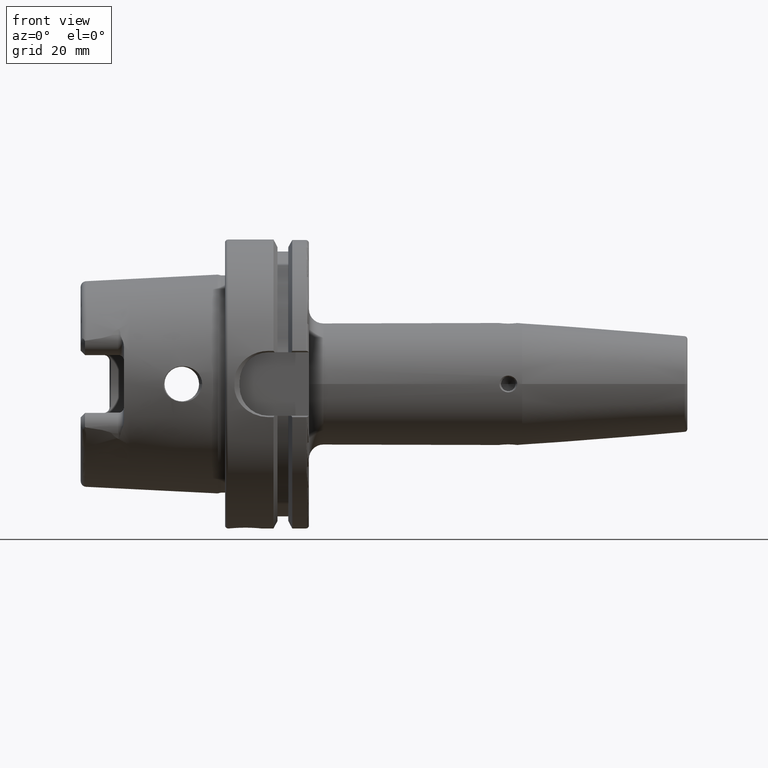
[diagram: clean part render]
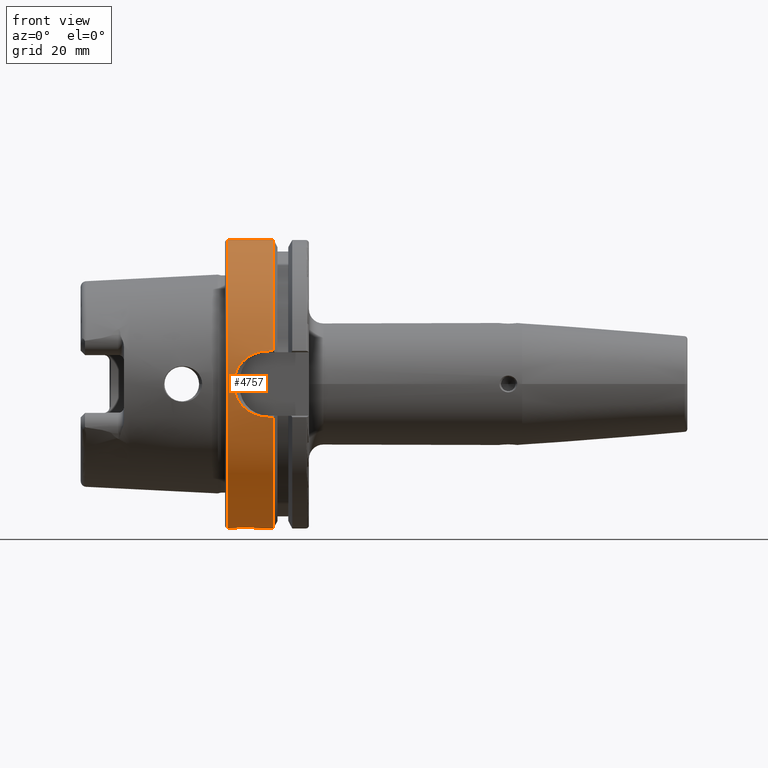
[diagram: same view with one face highlighted and labeled with its STEP entity id]
A machine part, front view. The second image highlights one B-rep face of the part: STEP entity #4757.
In plain terms, the highlighted cylindrical surface (partial cylindrical patch) has radius 50 mm, axis along (1, 0, 0).
Its self-contained STEP definition (entity closure, byte-faithful):
#1285=CARTESIAN_POINT('',(1.25E1,0.E0,-5.E1));
#1302=CARTESIAN_POINT('',(1.5E0,0.E0,-5.E1));
#1395=CARTESIAN_POINT('',(1.E0,0.E0,0.E0));
#1396=DIRECTION('',(-1.E0,0.E0,0.E0));
#1397=DIRECTION('',(0.E0,0.E0,-1.E0));
#1398=AXIS2_PLACEMENT_3D('',#1395,#1396,#1397);
#1400=DIRECTION('',(-1.E0,-1.567059371289E-13,0.E0));
#1401=VECTOR('',#1400,1.575240473581E1);
#1402=CARTESIAN_POINT('',(1.675240473581E1,-1.020538999289E-14,5.E1));
#1403=LINE('',#1402,#1401);
#1404=CARTESIAN_POINT('',(1.675240473581E1,0.E0,0.E0));
#1405=DIRECTION('',(1.E0,0.E0,0.E0));
#1406=DIRECTION('',(0.E0,0.E0,1.E0));
#1407=AXIS2_PLACEMENT_3D('',#1404,#1405,#1406);
#1409=DIRECTION('',(1.E0,0.E0,0.E0));
#1410=VECTOR('',#1409,1.752404735808E0);
#1411=CARTESIAN_POINT('',(1.5E1,-4.866725793949E1,1.146725793949E1));
#1412=LINE('',#1411,#1410);
#1413=CARTESIAN_POINT('',(3.242449234641E0,-5.E1,-3.294650840407E-12));
#1414=CARTESIAN_POINT('',(3.195698626160E0,-5.E1,5.496726525140E-1));
#1415=CARTESIAN_POINT('',(3.198108672875E0,-4.998199676773E1,1.634145973803E0));
#1416=CARTESIAN_POINT('',(3.473212193996E0,-4.990375275698E1,3.229913317570E0));
#1417=CARTESIAN_POINT('',(4.001146744661E0,-4.978182243176E1,4.741692759375E0));
#1418=CARTESIAN_POINT('',(4.750889084959E0,-4.962813696275E1,6.135179899987E0));
#1419=CARTESIAN_POINT('',(5.685923258905E0,-4.945656431633E1,7.383388400570E0));
#1420=CARTESIAN_POINT('',(6.772808018734E0,-4.928030837920E1,8.473267682348E0));
#1421=CARTESIAN_POINT('',(7.971387096938E0,-4.911246630353E1,9.391752746832E0));
#1422=CARTESIAN_POINT('',(9.263198137577E0,-4.896154109661E1,1.014506900311E1));
#1423=CARTESIAN_POINT('',(1.062765257134E1,-4.883542774445E1,1.073259403525E1));
#1424=CARTESIAN_POINT('',(1.205033686891E1,-4.874013967174E1,1.115515935174E1));
#1425=CARTESIAN_POINT('',(1.351434747589E1,-4.868076398407E1,1.141016022122E1));
#1426=CARTESIAN_POINT('',(1.450196207708E1,-4.866725793949E1,1.146725793949E1));
#1427=CARTESIAN_POINT('',(1.5E1,-4.866725793949E1,1.146725793949E1));
#1429=CARTESIAN_POINT('',(1.5E1,-4.866725793949E1,-1.146725793949E1));
#1430=CARTESIAN_POINT('',(1.426284537492E1,-4.866725793949E1,
-1.146725793949E1));
#1431=CARTESIAN_POINT('',(1.280284266871E1,-4.869577412770E1,
-1.134757214403E1));
#1432=CARTESIAN_POINT('',(1.053726696753E1,-4.883429446847E1,
-1.074366768164E1));
#1433=CARTESIAN_POINT('',(8.551336985445E0,-4.903608754895E1,
-9.791235095736E0));
#1434=CARTESIAN_POINT('',(6.939682711705E0,-4.925346794232E1,
-8.635938317251E0));
#1435=CARTESIAN_POINT('',(5.743166457549E0,-4.944661638367E1,
-7.450856693894E0));
#1436=CARTESIAN_POINT('',(4.803554973365E0,-4.961795195372E1,
-6.215970666327E0));
#1437=CARTESIAN_POINT('',(4.030855658686E0,-4.977523977613E1,
-4.813180449423E0));
#1438=CARTESIAN_POINT('',(3.477728115863E0,-4.990239629529E1,
-3.259600114121E0));
#1439=CARTESIAN_POINT('',(3.195372415950E0,-4.998280024600E1,
-1.616982989273E0));
#1440=CARTESIAN_POINT('',(3.196513801491E0,-5.E1,-5.400881871914E-1));
#1441=CARTESIAN_POINT('',(3.242449234641E0,-5.E1,-3.294650840407E-12));
#1443=DIRECTION('',(1.E0,0.E0,0.E0));
#1444=VECTOR('',#1443,1.752404735808E0);
#1445=CARTESIAN_POINT('',(1.5E1,-4.866725793949E1,-1.146725793949E1));
#1446=LINE('',#1445,#1444);
#1447=CARTESIAN_POINT('',(1.675240473581E1,0.E0,0.E0));
#1448=DIRECTION('',(1.E0,0.E0,0.E0));
#1449=DIRECTION('',(0.E0,-9.733451587899E-1,-2.293451587899E-1));
#1450=AXIS2_PLACEMENT_3D('',#1447,#1448,#1449);
#1452=DIRECTION('',(-1.E0,0.E0,0.E0));
#1453=VECTOR('',#1452,4.252404735808E0);
#1454=CARTESIAN_POINT('',(1.675240473581E1,0.E0,-5.E1));
#1455=LINE('',#1454,#1453);
#1456=CARTESIAN_POINT('',(1.5E0,0.E0,-5.E1));
#1457=CARTESIAN_POINT('',(1.5E0,-3.839369724111E-1,-5.E1));
#1458=CARTESIAN_POINT('',(1.587262621390E0,-1.127059758559E0,
-4.999125825446E1));
#1459=CARTESIAN_POINT('',(1.959642641189E0,-2.185155425361E0,
-4.995564115930E1));
#1460=CARTESIAN_POINT('',(2.549390042110E0,-3.132091593471E0,
-4.990438793404E1));
#1461=CARTESIAN_POINT('',(3.326233948467E0,-3.938620596326E0,
-4.984640830668E1));
#1462=CARTESIAN_POINT('',(4.270619486322E0,-4.579597405866E0,
-4.979080203015E1));
#1463=CARTESIAN_POINT('',(5.317077737159E0,-5.014120445441E0,
-4.974828795727E1));
#1464=CARTESIAN_POINT('',(6.435022113086E0,-5.235365898843E0,
-4.972516956659E1));
#1465=CARTESIAN_POINT('',(7.561328255421E0,-5.235749274155E0,
-4.972512904275E1));
#1466=CARTESIAN_POINT('',(8.679631959113E0,-5.015076374345E0,
-4.974818935919E1));
#1467=CARTESIAN_POINT('',(9.725270354719E0,-4.581734511603E0,
-4.979060202214E1));
#1468=CARTESIAN_POINT('',(1.066949152017E1,-3.942052585473E0,
-4.984612580312E1));
#1469=CARTESIAN_POINT('',(1.144598481657E1,-3.137952588810E0,
-4.990401251474E1));
#1470=CARTESIAN_POINT('',(1.203785115570E1,-2.190665481758E0,
-4.995540611604E1));
#1471=CARTESIAN_POINT('',(1.241196825875E1,-1.131218345675E0,
-4.999118158868E1));
#1472=CARTESIAN_POINT('',(1.25E1,-3.855445001322E-1,-5.E1));
#1473=CARTESIAN_POINT('',(1.25E1,0.E0,-5.E1));
#1475=DIRECTION('',(-1.E0,-6.288053411296E-12,0.E0));
#1476=VECTOR('',#1475,5.E-1);
#1477=CARTESIAN_POINT('',(1.5E0,0.E0,-5.E1));
#1478=LINE('',#1477,#1476);
#2912=CARTESIAN_POINT('',(1.675240473581E1,0.E0,5.E1));
#2913=VERTEX_POINT('',#2912);
#3063=VERTEX_POINT('',#1285);
#3064=VERTEX_POINT('',#1302);
#3069=CARTESIAN_POINT('',(1.675240473581E1,0.E0,-5.E1));
#3070=VERTEX_POINT('',#3069);
#3110=CARTESIAN_POINT('',(1.5E1,-4.866725793949E1,-1.146725793949E1));
#3111=CARTESIAN_POINT('',(1.675240473581E1,-4.866725793949E1,
-1.146725793949E1));
#3112=VERTEX_POINT('',#3110);
#3113=VERTEX_POINT('',#3111);
#3114=VERTEX_POINT('',#1441);
#3115=VERTEX_POINT('',#1427);
#3116=CARTESIAN_POINT('',(1.675240473581E1,-4.866725793949E1,1.146725793949E1));
#3117=VERTEX_POINT('',#3116);
#3135=CARTESIAN_POINT('',(1.E0,0.E0,-5.E1));
#3136=CARTESIAN_POINT('',(1.E0,-1.224646799147E-14,5.E1));
#3137=VERTEX_POINT('',#3135);
#3138=VERTEX_POINT('',#3136);
#4732=CARTESIAN_POINT('',(0.E0,0.E0,0.E0));
#4733=DIRECTION('',(1.E0,0.E0,0.E0));
#4734=DIRECTION('',(0.E0,0.E0,1.E0));
#4735=AXIS2_PLACEMENT_3D('',#4732,#4733,#4734);
#4736=CYLINDRICAL_SURFACE('',#4735,5.E1);
#4737=ORIENTED_EDGE('',*,*,#4629,.T.);
#4738=ORIENTED_EDGE('',*,*,#4679,.F.);
#4740=ORIENTED_EDGE('',*,*,#4739,.T.);
#4742=ORIENTED_EDGE('',*,*,#4741,.F.);
#4744=ORIENTED_EDGE('',*,*,#4743,.F.);
#4746=ORIENTED_EDGE('',*,*,#4745,.F.);
#4748=ORIENTED_EDGE('',*,*,#4747,.T.);
#4750=ORIENTED_EDGE('',*,*,#4749,.T.);
#4751=ORIENTED_EDGE('',*,*,#4659,.T.);
#4753=ORIENTED_EDGE('',*,*,#4752,.F.);
#4754=ORIENTED_EDGE('',*,*,#4655,.T.);
#4755=EDGE_LOOP('',(#4737,#4738,#4740,#4742,#4744,#4746,#4748,#4750,#4751,#4753,
#4754));
#4756=FACE_OUTER_BOUND('',#4755,.F.);
#4757=ADVANCED_FACE('',(#4756),#4736,.T.);
#1399=CIRCLE('',#1398,5.E1);
#1408=CIRCLE('',#1407,5.E1);
#1428=B_SPLINE_CURVE_WITH_KNOTS('',3,(#1413,#1414,#1415,#1416,#1417,#1418,#1419,
#1420,#1421,#1422,#1423,#1424,#1425,#1426,#1427),.UNSPECIFIED.,.F.,.F.,(4,1,1,1,
1,1,1,1,1,1,1,1,4),(0.E0,8.333333333333E-2,1.666666666667E-1,2.5E-1,
3.333333333333E-1,4.166666666667E-1,5.E-1,5.833333333333E-1,6.666666666667E-1,
7.5E-1,8.333333333333E-1,9.166666666667E-1,1.E0),.UNSPECIFIED.);
#1442=B_SPLINE_CURVE_WITH_KNOTS('',3,(#1429,#1430,#1431,#1432,#1433,#1434,#1435,
#1436,#1437,#1438,#1439,#1440,#1441),.UNSPECIFIED.,.F.,.F.,(4,1,1,1,1,1,1,1,1,1,
4),(0.E0,1.E-1,2.E-1,3.E-1,4.E-1,5.E-1,6.E-1,7.E-1,8.E-1,9.E-1,1.E0),
.UNSPECIFIED.);
#1451=CIRCLE('',#1450,5.E1);
#1474=B_SPLINE_CURVE_WITH_KNOTS('',3,(#1456,#1457,#1458,#1459,#1460,#1461,#1462,
#1463,#1464,#1465,#1466,#1467,#1468,#1469,#1470,#1471,#1472,#1473),
.UNSPECIFIED.,.F.,.F.,(4,1,1,1,1,1,1,1,1,1,1,1,1,1,1,4),(0.E0,6.666666666667E-2,
1.333333333333E-1,2.E-1,2.666666666667E-1,3.333333333333E-1,4.E-1,
4.666666666667E-1,5.333333333333E-1,6.E-1,6.666666666667E-1,7.333333333333E-1,
8.E-1,8.666666666667E-1,9.333333333333E-1,1.E0),.UNSPECIFIED.);
#4629=EDGE_CURVE('',#3137,#3138,#1399,.T.);
#4655=EDGE_CURVE('',#3064,#3137,#1478,.T.);
#4659=EDGE_CURVE('',#3070,#3063,#1455,.T.);
#4679=EDGE_CURVE('',#2913,#3138,#1403,.T.);
#4739=EDGE_CURVE('',#2913,#3117,#1408,.T.);
#4741=EDGE_CURVE('',#3115,#3117,#1412,.T.);
#4743=EDGE_CURVE('',#3114,#3115,#1428,.T.);
#4745=EDGE_CURVE('',#3112,#3114,#1442,.T.);
#4747=EDGE_CURVE('',#3112,#3113,#1446,.T.);
#4749=EDGE_CURVE('',#3113,#3070,#1451,.T.);
#4752=EDGE_CURVE('',#3064,#3063,#1474,.T.);